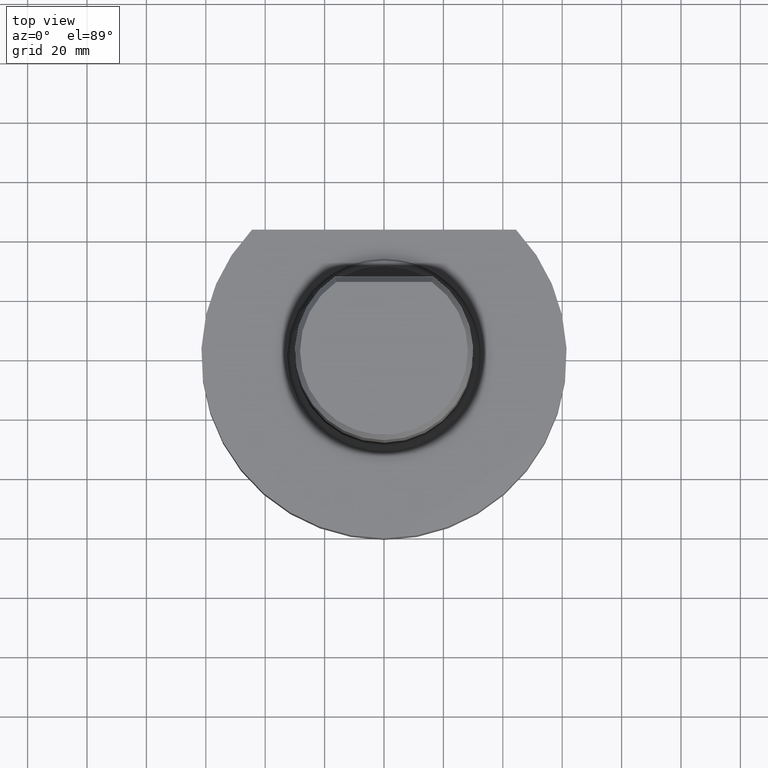
[diagram: clean part render]
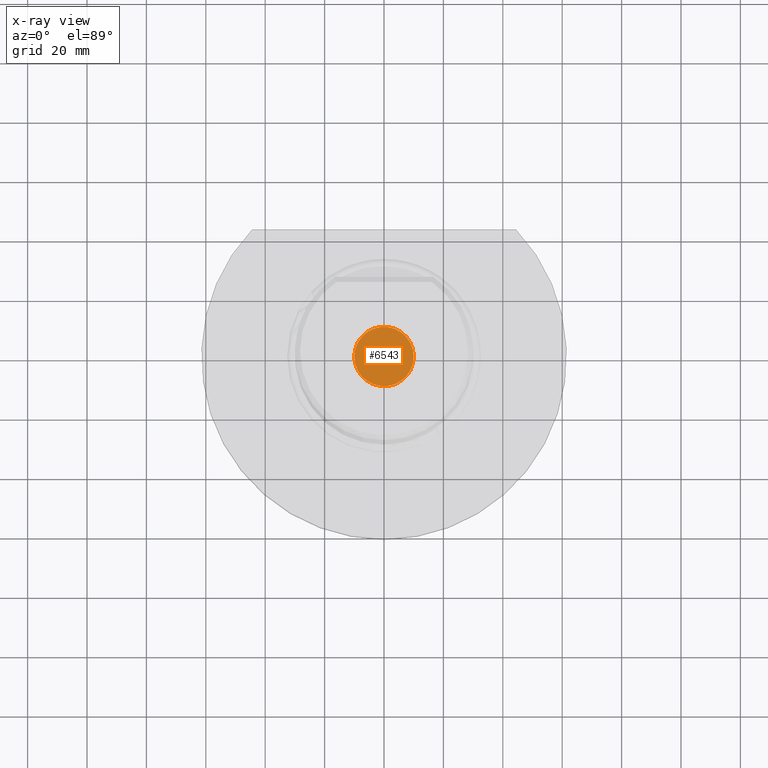
[diagram: x-ray — body ghosted, one internal face saturated and labeled with its STEP entity id]
A machine part, top view, then the same camera in x-ray: the body is ghosted and one INTERNAL B-rep face — a face not visible from any outside direction — is saturated and labeled: STEP entity #6543.
In plain terms, the highlighted planar face has unit normal (-0, -0, -1).
Its self-contained STEP definition (entity closure, byte-faithful):
#389 = CARTESIAN_POINT ( 'NONE',  ( -3.330669073875456999E-15, -1.479114197289392931E-30, -14.99999999999995737 ) ) ;
#1267 = ORIENTED_EDGE ( 'NONE', *, *, #11243, .T. ) ;
#3147 = CARTESIAN_POINT ( 'NONE',  ( -3.330669073875456999E-15, -1.479114197289392931E-30, -14.99999999999995737 ) ) ;
#3246 = CARTESIAN_POINT ( 'NONE',  ( -10.00000000000000355, -1.479114197289392931E-30, -14.99999999999995559 ) ) ;
#3335 = AXIS2_PLACEMENT_3D ( 'NONE', #3147, #4887, #9460 ) ;
#4075 = CIRCLE ( 'NONE', #5495, 10.00000000000000000 ) ;
#4262 = PLANE ( 'NONE',  #3335 ) ;
#4598 = VERTEX_POINT ( 'NONE', #3246 ) ;
#4887 = DIRECTION ( 'NONE',  ( -2.220446049250309876E-16, -9.860761315262649757E-32, -1.000000000000000000 ) ) ;
#5495 = AXIS2_PLACEMENT_3D ( 'NONE', #389, #10911, #10030 ) ;
#6543 = ADVANCED_FACE ( 'Defeature completata1_74', ( #12238 ), #4262, .T. ) ;
#9460 = DIRECTION ( 'NONE',  ( -1.000000000000000000, 0.000000000000000000, 2.220446049250309876E-16 ) ) ;
#10030 = DIRECTION ( 'NONE',  ( -1.000000000000000000, 0.000000000000000000, 1.734723475976807094E-16 ) ) ;
#10911 = DIRECTION ( 'NONE',  ( -2.220446049250309876E-16, -9.860761315262649757E-32, -1.000000000000000000 ) ) ;
#11243 = EDGE_CURVE ( 'NONE', #4598, #4598, #4075, .T. ) ;
#12238 = FACE_OUTER_BOUND ( 'NONE', #14775, .T. ) ;
#14775 = EDGE_LOOP ( 'NONE', ( #1267 ) ) ;